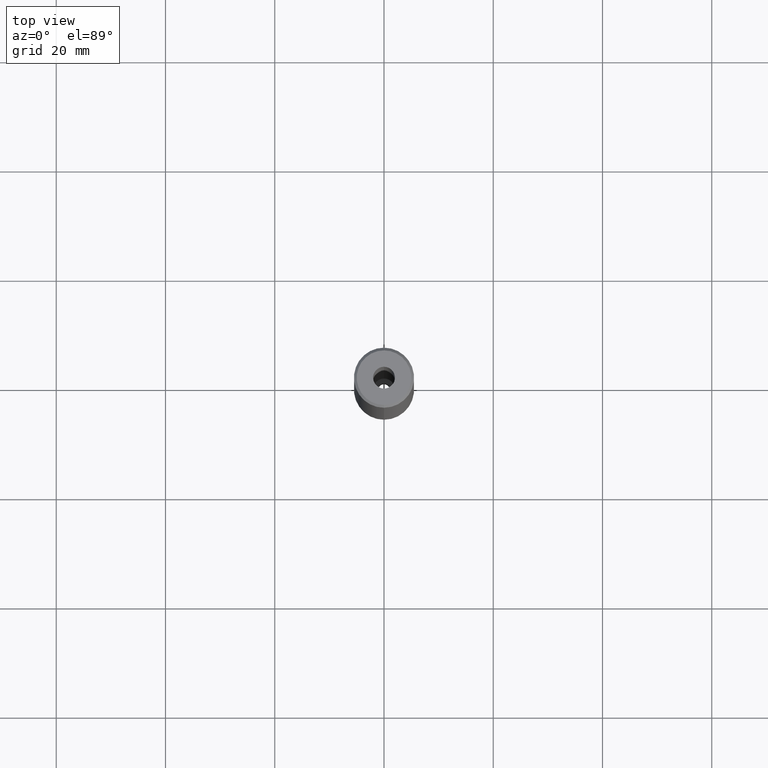
[diagram: clean part render]
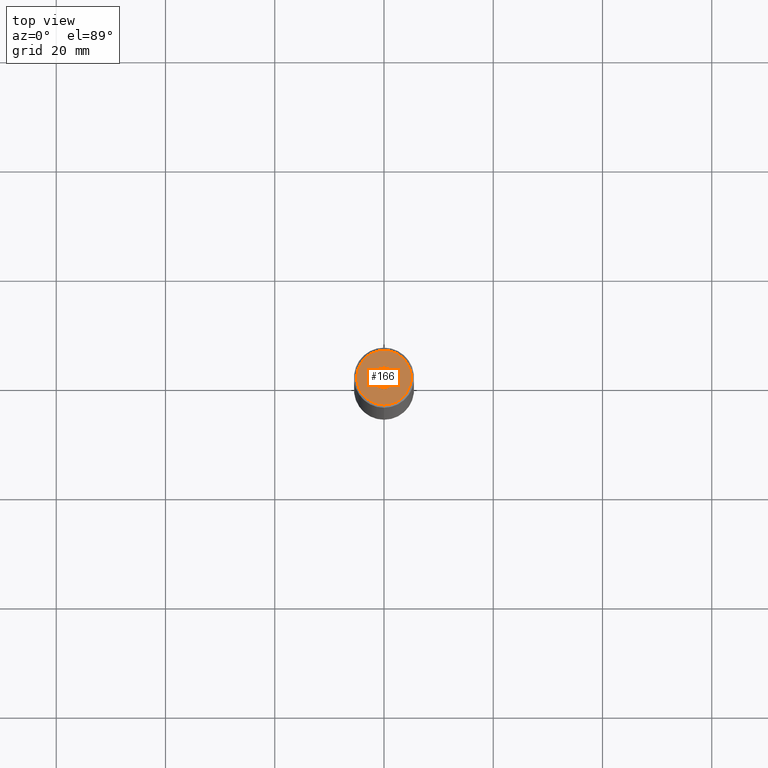
[diagram: same view with one face highlighted and labeled with its STEP entity id]
A machine part, top view. The second image highlights one B-rep face of the part: STEP entity #166.
In plain terms, the highlighted planar face has unit normal (0, 0, -1).
Its self-contained STEP definition (entity closure, byte-faithful):
#126=VERTEX_POINT('NONE',#307);
#128=VERTEX_POINT('NONE',#309);
#166=ADVANCED_FACE('NONE',(#352,#353),#354,.F.);
#190=VERTEX_POINT('NONE',#383);
#194=EDGE_CURVE('NONE',#128,#126,#387,.T.);
#198=VERTEX_POINT('NONE',#391);
#214=EDGE_CURVE('NONE',#190,#198,#409,.T.);
#228=EDGE_CURVE('NONE',#198,#190,#423,.T.);
#232=EDGE_CURVE('NONE',#126,#128,#427,.T.);
#307=CARTESIAN_POINT('',(-6.42918335756747E-016,4.99999999999999,127.0));
#309=CARTESIAN_POINT('',(0.0,-4.99999999999999,127.0));
#352=FACE_OUTER_BOUND('',#556,.T.);
#353=FACE_BOUND('',#557,.T.);
#354=PLANE('',#558);
#383=CARTESIAN_POINT('',(-2.44921270764475E-016,-2.0,127.0));
#387=CIRCLE('',#601,4.99999999999999);
#391=CARTESIAN_POINT('',(0.0,2.0,127.0));
#409=CIRCLE('',#629,2.0);
#423=CIRCLE('',#648,2.0);
#427=CIRCLE('',#654,4.99999999999999);
#556=EDGE_LOOP('',(#804,#805));
#557=EDGE_LOOP('',(#806,#807));
#558=AXIS2_PLACEMENT_3D('',#808,#809,#810);
#601=AXIS2_PLACEMENT_3D('',#863,#864,#865);
#629=AXIS2_PLACEMENT_3D('',#887,#888,#889);
#648=AXIS2_PLACEMENT_3D('',#897,#898,#899);
#654=AXIS2_PLACEMENT_3D('',#903,#904,#905);
#804=ORIENTED_EDGE('',*,*,#194,.T.);
#805=ORIENTED_EDGE('',*,*,#232,.T.);
#806=ORIENTED_EDGE('',*,*,#228,.F.);
#807=ORIENTED_EDGE('',*,*,#214,.F.);
#808=CARTESIAN_POINT('',(-5.49999999999998,0.0,127.0));
#809=DIRECTION('',(0.0,0.0,-1.0));
#810=DIRECTION('',(-1.0,0.0,0.0));
#863=CARTESIAN_POINT('',(0.0,0.0,127.0));
#864=DIRECTION('',(-0.0,0.0,1.0));
#865=DIRECTION('',(0.0,-1.0,0.0));
#887=CARTESIAN_POINT('',(0.0,0.0,127.0));
#888=DIRECTION('',(0.0,-0.0,1.0));
#889=DIRECTION('',(0.0,1.0,0.0));
#897=CARTESIAN_POINT('',(0.0,0.0,127.0));
#898=DIRECTION('',(0.0,-0.0,1.0));
#899=DIRECTION('',(0.0,1.0,0.0));
#903=CARTESIAN_POINT('',(0.0,0.0,127.0));
#904=DIRECTION('',(-0.0,0.0,1.0));
#905=DIRECTION('',(0.0,-1.0,0.0));